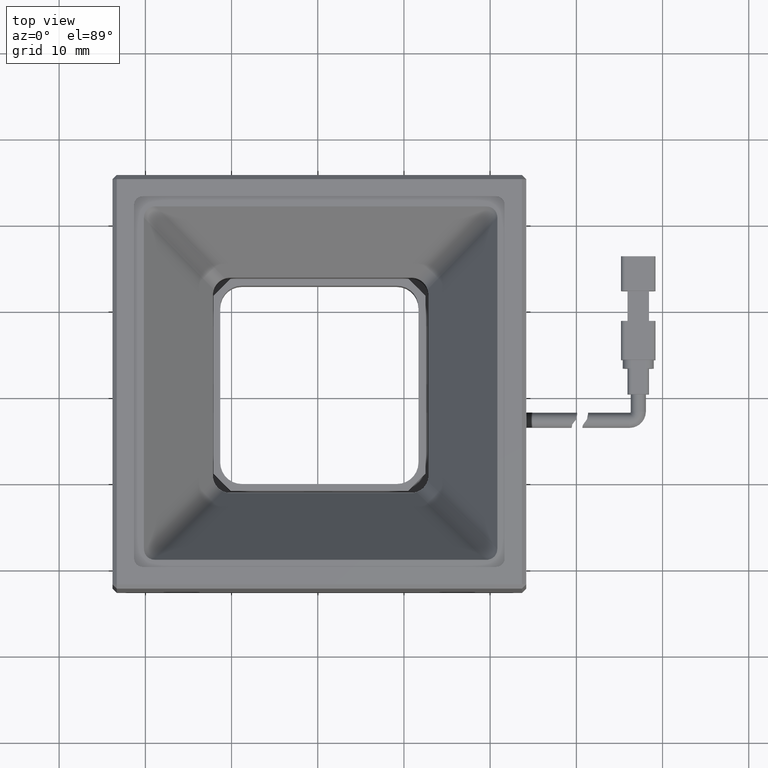
[diagram: clean part render]
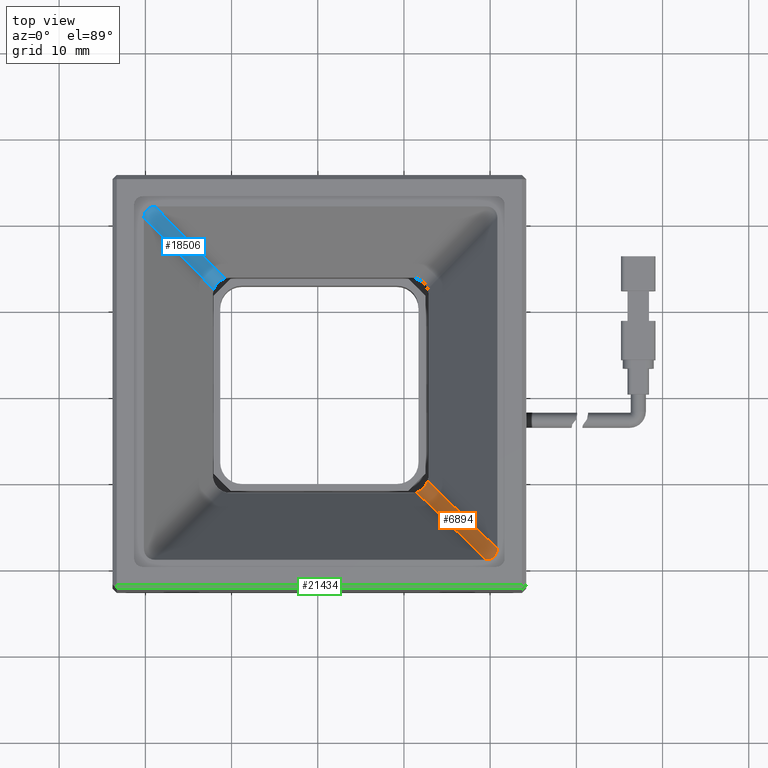
[diagram: same view with three faces highlighted in distinct colors, each labeled with its STEP entity id]
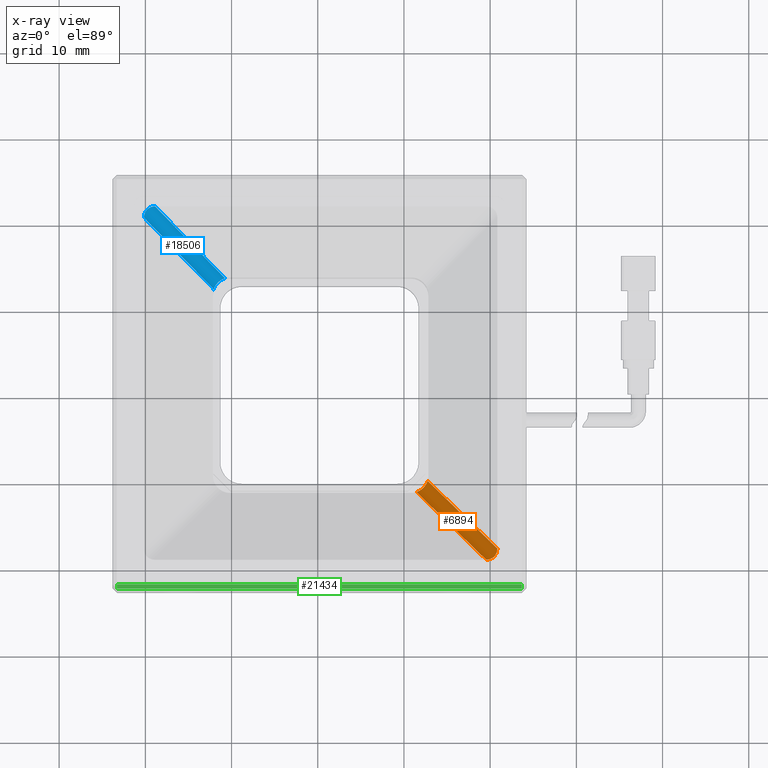
[diagram: x-ray of the same camera — body ghosted, the three highlighted faces saturated]
A machine part, top view with three faces highlighted in distinct colors.
The next image is the same camera in x-ray (body ghosted, the three faces saturated) — at least one of them is partly hidden behind the body in this view.
Their STEP definitions:

[orange] entity #6894 — the highlighted cylindrical surface (edge-blend (fillet) strip) has radius 1.5 mm, axis along (0.4472, -0.4472, 0.7746).
#246 = AXIS2_PLACEMENT_3D ( 'NONE', #27503, #11547, #23028 ) ;
#292 = CARTESIAN_POINT ( 'NONE',  ( 0.8357254145193584400, -18.74062568127715900, 29.40000000000727500 ) ) ;
#1096 = ORIENTED_EDGE ( 'NONE', *, *, #25558, .T. ) ;
#1484 = CARTESIAN_POINT ( 'NONE',  ( -7.532244968299757200, -10.41129728129038400, 15.17484453084986400 ) ) ;
#1756 = CARTESIAN_POINT ( 'NONE',  ( -8.557559185678869100, -11.14966017673405900, 15.38035382250966000 ) ) ;
#2703 = CARTESIAN_POINT ( 'NONE',  ( -8.557559185678867300, -11.14966017673405900, 15.38035382250966000 ) ) ;
#3507 = VERTEX_POINT ( 'NONE', #5536 ) ;
#3773 = CARTESIAN_POINT ( 'NONE',  ( -7.867551803511554800, -10.77562994406294700, 15.15726159663946300 ) ) ;
#4326 = VERTEX_POINT ( 'NONE', #7241 ) ;
#4886 = CARTESIAN_POINT ( 'NONE',  ( -0.4633126911572985100, -19.24390667125563700, 29.40000000000727500 ) ) ;
#5290 = VECTOR ( 'NONE', #17651, 1000.000000000000000 ) ;
#5536 = CARTESIAN_POINT ( 'NONE',  ( 0.8357254145193517800, -17.94486856557897500, 29.40000000000727100 ) ) ;
#6060 = CARTESIAN_POINT ( 'NONE',  ( -8.274543573872875900, -11.04241366233848300, 15.24849166154086400 ) ) ;
#6894 = ADVANCED_FACE ( 'NONE', ( #15416 ), #24658, .F. ) ;
#7032 = CARTESIAN_POINT ( 'NONE',  ( 0.8357254145193517800, -17.94486856557897500, 29.40000000000727100 ) ) ;
#7241 = CARTESIAN_POINT ( 'NONE',  ( -0.4633126911572985100, -19.24390667125563700, 29.40000000000727500 ) ) ;
#8329 = CARTESIAN_POINT ( 'NONE',  ( -8.557559185678867300, -11.14966017673405900, 15.38035382250966000 ) ) ;
#9795 = VECTOR ( 'NONE', #11843, 1000.000000000000100 ) ;
#11340 = ORIENTED_EDGE ( 'NONE', *, *, #13364, .F. ) ;
#11460 = CARTESIAN_POINT ( 'NONE',  ( -7.258521080002217300, -9.850622071057403100, 15.38035382250966000 ) ) ;
#11547 = DIRECTION ( 'NONE',  ( 0.4472135954999585400, -0.4472135954999585900, 0.7745966692414827400 ) ) ;
#11843 = DIRECTION ( 'NONE',  ( 0.4472135954999584800, -0.4472135954999585400, 0.7745966692414826300 ) ) ;
#13364 = EDGE_CURVE ( 'NONE', #3507, #4326, #19395, .T. ) ;
#13790 = VERTEX_POINT ( 'NONE', #11460 ) ;
#14505 = VERTEX_POINT ( 'NONE', #2703 ) ;
#15092 = CARTESIAN_POINT ( 'NONE',  ( -7.365425108147633200, -10.13298600722720300, 15.24870119235003000 ) ) ;
#15416 = FACE_OUTER_BOUND ( 'NONE', #24412, .T. ) ;
#16569 = LINE ( 'NONE', #27805, #9795 ) ;
#17403 = CARTESIAN_POINT ( 'NONE',  ( -7.632342523492807700, -10.54038278564837200, 15.15728525876519600 ) ) ;
#17651 = DIRECTION ( 'NONE',  ( 0.4472135954999583700, -0.4472135954999586500, 0.7745966692414827400 ) ) ;
#18493 = CARTESIAN_POINT ( 'NONE',  ( 0.3324444245408825200, -19.24390667125563700, 29.40000000000727500 ) ) ;
#19395 =( BOUNDED_CURVE ( )  B_SPLINE_CURVE ( 3, ( #7032, #292, #18493, #4886 ),
 .UNSPECIFIED., .F., .F. ) 
 B_SPLINE_CURVE_WITH_KNOTS ( ( 4, 4 ),
 ( 5.624127271353177800, 6.942243343005994700 ),
 .UNSPECIFIED. ) 
 CURVE ( )  GEOMETRIC_REPRESENTATION_ITEM ( )  RATIONAL_B_SPLINE_CURVE ( ( 1.000000000000000000, 0.8603796100280634000, 0.8603796100280634000, 1.000000000000000000 ) ) 
 REPRESENTATION_ITEM ( '' )  );
#19488 = EDGE_CURVE ( 'NONE', #14505, #4326, #22724, .T. ) ;
#19689 = CARTESIAN_POINT ( 'NONE',  ( -7.996660164924708900, -10.87575385616611700, 15.17482184559585400 ) ) ;
#21966 = CARTESIAN_POINT ( 'NONE',  ( -8.417077994935368700, -11.10493660594615200, 15.30289032560909700 ) ) ;
#22724 = LINE ( 'NONE', #1756, #5290 ) ;
#23028 = DIRECTION ( 'NONE',  ( 0.0000000000000000000, -0.8660254037844381500, -0.5000000000000010000 ) ) ;
#24143 = CARTESIAN_POINT ( 'NONE',  ( -7.258521080002217300, -9.850622071057403100, 15.38035382250966000 ) ) ;
#24412 = EDGE_LOOP ( 'NONE', ( #26903, #1096, #27027, #11340 ) ) ;
#24658 = CYLINDRICAL_SURFACE ( 'NONE', #246, 1.500000000000000200 ) ;
#25558 = EDGE_CURVE ( 'NONE', #13790, #14505, #27605, .T. ) ;
#26413 = CARTESIAN_POINT ( 'NONE',  ( -7.303246366852850900, -9.991108652124863100, 15.30288735330126600 ) ) ;
#26510 = EDGE_CURVE ( 'NONE', #13790, #3507, #16569, .T. ) ;
#26903 = ORIENTED_EDGE ( 'NONE', *, *, #26510, .F. ) ;
#27027 = ORIENTED_EDGE ( 'NONE', *, *, #19488, .T. ) ;
#27503 = CARTESIAN_POINT ( 'NONE',  ( -13.20350507002199000, -5.204676186714285000, 8.083339501611883200 ) ) ;
#27605 = B_SPLINE_CURVE_WITH_KNOTS ( 'NONE', 3,
 ( #24143, #26413, #15092, #1484, #17403, #3773, #19689, #6060, #21966, #8329 ),
 .UNSPECIFIED., .F., .F.,
 ( 4, 2, 2, 2, 4 ),
 ( 0.0000000000000000000, 0.0004922574036542796700, 0.0009845148073085593300, 0.001476772210962839100, 0.001969029614617118700 ),
 .UNSPECIFIED. ) ;
#27805 = CARTESIAN_POINT ( 'NONE',  ( -11.90446696434533200, -5.204676186714285000, 7.333339501611879600 ) ) ;

[blue] entity #18506 — the highlighted cylindrical surface (edge-blend (fillet) strip) has radius 1.5 mm, axis along (0.4472, -0.4472, -0.7746).
#446 = CARTESIAN_POINT ( 'NONE',  ( -40.16427458548066200, 20.45705522306773000, 29.40000000000727100 ) ) ;
#457 = EDGE_CURVE ( 'NONE', #23702, #23961, #12776, .T. ) ;
#800 = ORIENTED_EDGE ( 'NONE', *, *, #25719, .F. ) ;
#2171 = CARTESIAN_POINT ( 'NONE',  ( -40.16427458548066200, 20.45705522306773000, 29.40000000000727100 ) ) ;
#2562 = B_SPLINE_CURVE_WITH_KNOTS ( 'NONE', 3,
 ( #11198, #11102, #4497, #20406, #6758, #22678, #9044, #24946, #11303, #27231 ),
 .UNSPECIFIED., .F., .F.,
 ( 4, 2, 2, 2, 4 ),
 ( 1.734723475976807100E-018, 0.0004922574036542847600, 0.0009845148073085677900, 0.001476772210962850800, 0.001969029614617125200 ),
 .UNSPECIFIED. ) ;
#2710 = CARTESIAN_POINT ( 'NONE',  ( -39.66099359550219800, 21.75609332874439200, 29.40000000000727500 ) ) ;
#4172 = VERTEX_POINT ( 'NONE', #2171 ) ;
#4497 = CARTESIAN_POINT ( 'NONE',  ( -31.96312406281367300, 12.64517266471595400, 15.24870119235002400 ) ) ;
#5477 = ORIENTED_EDGE ( 'NONE', *, *, #5935, .T. ) ;
#5935 = EDGE_CURVE ( 'NONE', #22304, #23961, #2562, .T. ) ;
#6758 = CARTESIAN_POINT ( 'NONE',  ( -31.69620664746850000, 13.05256944313712500, 15.15728525876519600 ) ) ;
#6808 = CYLINDRICAL_SURFACE ( 'NONE', #25283, 1.499999999999999800 ) ;
#9044 = CARTESIAN_POINT ( 'NONE',  ( -31.33188900603661900, 13.38794051365487200, 15.17482184559585400 ) ) ;
#9194 = DIRECTION ( 'NONE',  ( 0.4472135954999587000, -0.4472135954999586500, -0.7745966692414824100 ) ) ;
#9446 = CARTESIAN_POINT ( 'NONE',  ( -31.12504410093933100, 12.71686284420304800, 16.74359353945627000 ) ) ;
#10164 = EDGE_LOOP ( 'NONE', ( #22910, #10387, #800, #5477 ) ) ;
#10387 = ORIENTED_EDGE ( 'NONE', *, *, #11996, .F. ) ;
#11102 = CARTESIAN_POINT ( 'NONE',  ( -32.02530280410846300, 12.50329530961361600, 15.30288735330127300 ) ) ;
#11198 = CARTESIAN_POINT ( 'NONE',  ( -32.07002809095909200, 12.36280872854615300, 15.38035382250966000 ) ) ;
#11273 = CARTESIAN_POINT ( 'NONE',  ( -32.42408220661598500, 12.71686284420304800, 15.99359353945626500 ) ) ;
#11303 = CARTESIAN_POINT ( 'NONE',  ( -30.91147117602593800, 13.61712326343490000, 15.30289032560909700 ) ) ;
#11996 = EDGE_CURVE ( 'NONE', #4172, #23702, #28173, .T. ) ;
#12776 = LINE ( 'NONE', #13870, #24870 ) ;
#13870 = CARTESIAN_POINT ( 'NONE',  ( -31.12504410093933100, 14.01590094987970800, 15.99359353945626900 ) ) ;
#14024 = DIRECTION ( 'NONE',  ( 0.4472135954999587000, -0.4472135954999586500, -0.7745966692414825200 ) ) ;
#14118 = DIRECTION ( 'NONE',  ( -0.8660254037844383700, 0.0000000000000000000, -0.5000000000000005600 ) ) ;
#14928 = LINE ( 'NONE', #11273, #23142 ) ;
#15737 = FACE_OUTER_BOUND ( 'NONE', #10164, .T. ) ;
#18137 = CARTESIAN_POINT ( 'NONE',  ( -30.77098998528243700, 13.66184683422281400, 15.38035382250966000 ) ) ;
#18506 = ADVANCED_FACE ( 'NONE', ( #15737 ), #6808, .F. ) ;
#18637 = CARTESIAN_POINT ( 'NONE',  ( -38.86523647980401100, 21.75609332874439500, 29.40000000000727500 ) ) ;
#19994 = CARTESIAN_POINT ( 'NONE',  ( -32.07002809095909200, 12.36280872854615300, 15.38035382250966000 ) ) ;
#20406 = CARTESIAN_POINT ( 'NONE',  ( -31.79630420266156000, 12.92348393877913400, 15.17484453084986700 ) ) ;
#22304 = VERTEX_POINT ( 'NONE', #19994 ) ;
#22678 = CARTESIAN_POINT ( 'NONE',  ( -31.46099736744975700, 13.28781660155170200, 15.15726159663946900 ) ) ;
#22910 = ORIENTED_EDGE ( 'NONE', *, *, #457, .F. ) ;
#23121 = CARTESIAN_POINT ( 'NONE',  ( -40.16427458548066900, 21.25281233876591400, 29.40000000000727500 ) ) ;
#23142 = VECTOR ( 'NONE', #27194, 1000.000000000000000 ) ;
#23702 = VERTEX_POINT ( 'NONE', #24002 ) ;
#23961 = VERTEX_POINT ( 'NONE', #18137 ) ;
#24002 = CARTESIAN_POINT ( 'NONE',  ( -38.86523647980401100, 21.75609332874439500, 29.40000000000727500 ) ) ;
#24870 = VECTOR ( 'NONE', #9194, 1000.000000000000000 ) ;
#24946 = CARTESIAN_POINT ( 'NONE',  ( -31.05400559708843700, 13.55460031982723000, 15.24849166154086400 ) ) ;
#25283 = AXIS2_PLACEMENT_3D ( 'NONE', #9446, #14024, #14118 ) ;
#25719 = EDGE_CURVE ( 'NONE', #22304, #4172, #14928, .T. ) ;
#27194 = DIRECTION ( 'NONE',  ( -0.4472135954999587000, 0.4472135954999586500, 0.7745966692414824100 ) ) ;
#27231 = CARTESIAN_POINT ( 'NONE',  ( -30.77098998528243700, 13.66184683422281400, 15.38035382250966000 ) ) ;
#28173 =( BOUNDED_CURVE ( )  B_SPLINE_CURVE ( 3, ( #446, #23121, #2710, #18637 ),
 .UNSPECIFIED., .F., .F. ) 
 B_SPLINE_CURVE_WITH_KNOTS ( ( 4, 4 ),
 ( 2.482534617763384700, 3.800650689416201500 ),
 .UNSPECIFIED. ) 
 CURVE ( )  GEOMETRIC_REPRESENTATION_ITEM ( )  RATIONAL_B_SPLINE_CURVE ( ( 1.000000000000000000, 0.8603796100280634000, 0.8603796100280634000, 1.000000000000000000 ) ) 
 REPRESENTATION_ITEM ( '' )  );

[green] entity #21434 — the highlighted planar face has unit normal (0, -0.7071, 0.7071).
#230 = CARTESIAN_POINT ( 'NONE',  ( -43.31427458548065300, -22.59390667125562800, 29.50000000000727600 ) ) ;
#428 = DIRECTION ( 'NONE',  ( 1.000000000000000000, 0.0000000000000000000, -0.0000000000000000000 ) ) ;
#2411 = DIRECTION ( 'NONE',  ( -0.0000000000000000000, 0.7071067811865425800, 0.7071067811865525700 ) ) ;
#2443 = ORIENTED_EDGE ( 'NONE', *, *, #15033, .F. ) ;
#2934 = DIRECTION ( 'NONE',  ( 0.0000000000000000000, -0.7071067811865524600, 0.7071067811865426900 ) ) ;
#3394 = VERTEX_POINT ( 'NONE', #23345 ) ;
#3830 = VERTEX_POINT ( 'NONE', #28254 ) ;
#4204 = CARTESIAN_POINT ( 'NONE',  ( -43.31427458548065300, -22.09390667125563500, 30.00000000000728000 ) ) ;
#4897 = LINE ( 'NONE', #28953, #16260 ) ;
#5091 = CARTESIAN_POINT ( 'NONE',  ( -43.81427458548066100, -22.59390667125562800, 29.50000000000727600 ) ) ;
#5196 = LINE ( 'NONE', #5091, #17287 ) ;
#6852 = LINE ( 'NONE', #21194, #18982 ) ;
#6933 = ORIENTED_EDGE ( 'NONE', *, *, #27089, .T. ) ;
#7551 = DIRECTION ( 'NONE',  ( -0.0000000000000000000, 0.7071067811865426900, 0.7071067811865524600 ) ) ;
#7872 = CARTESIAN_POINT ( 'NONE',  ( 3.685725414519346500, -22.59390667125562800, 29.50000000000727600 ) ) ;
#8227 = VERTEX_POINT ( 'NONE', #7872 ) ;
#10306 = VERTEX_POINT ( 'NONE', #4204 ) ;
#11200 = FACE_OUTER_BOUND ( 'NONE', #17515, .T. ) ;
#11950 = EDGE_CURVE ( 'NONE', #3394, #10306, #12820, .T. ) ;
#12820 = LINE ( 'NONE', #230, #21384 ) ;
#13475 = ORIENTED_EDGE ( 'NONE', *, *, #11950, .F. ) ;
#15033 = EDGE_CURVE ( 'NONE', #10306, #3830, #4897, .T. ) ;
#16260 = VECTOR ( 'NONE', #17544, 1000.000000000000000 ) ;
#16554 = CARTESIAN_POINT ( 'NONE',  ( -43.81427458548066100, -22.09390667125563500, 30.00000000000728000 ) ) ;
#17287 = VECTOR ( 'NONE', #428, 1000.000000000000000 ) ;
#17515 = EDGE_LOOP ( 'NONE', ( #6933, #2443, #13475, #17632 ) ) ;
#17544 = DIRECTION ( 'NONE',  ( 1.000000000000000000, 0.0000000000000000000, 0.0000000000000000000 ) ) ;
#17632 = ORIENTED_EDGE ( 'NONE', *, *, #29304, .T. ) ;
#18743 = PLANE ( 'NONE',  #20500 ) ;
#18856 = DIRECTION ( 'NONE',  ( 0.0000000000000000000, -0.7071067811865426900, -0.7071067811865524600 ) ) ;
#18982 = VECTOR ( 'NONE', #7551, 1000.000000000000000 ) ;
#20500 = AXIS2_PLACEMENT_3D ( 'NONE', #16554, #2934, #18856 ) ;
#21194 = CARTESIAN_POINT ( 'NONE',  ( 3.685725414519371000, -22.09390667125563500, 30.00000000000728000 ) ) ;
#21384 = VECTOR ( 'NONE', #2411, 999.9999999999998900 ) ;
#21434 = ADVANCED_FACE ( 'NONE', ( #11200 ), #18743, .T. ) ;
#23345 = CARTESIAN_POINT ( 'NONE',  ( -43.31427458548065300, -22.59390667125562800, 29.50000000000728000 ) ) ;
#27089 = EDGE_CURVE ( 'NONE', #8227, #3830, #6852, .T. ) ;
#28254 = CARTESIAN_POINT ( 'NONE',  ( 3.685725414519357200, -22.09390667125563500, 30.00000000000728000 ) ) ;
#28953 = CARTESIAN_POINT ( 'NONE',  ( -43.81427458548066100, -22.09390667125563500, 30.00000000000728000 ) ) ;
#29304 = EDGE_CURVE ( 'NONE', #3394, #8227, #5196, .T. ) ;